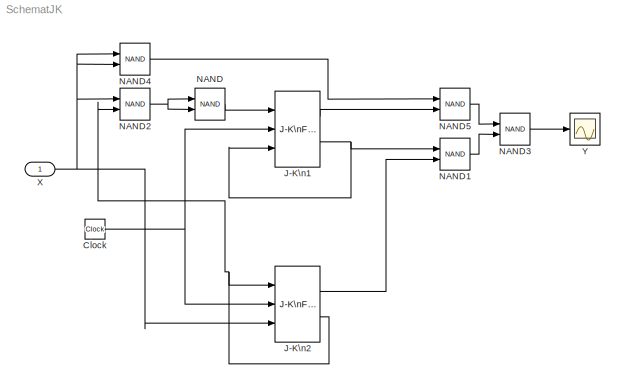
MODEL SchematJK
KIND model
BLOCK [Clock] Clock
  SID = 11
BLOCK [Reference] J-K\n1  REF=simulink_extras/Flip Flops/J-K\nFlip-Flop
  Ports = [3, 2]
  SID = 1
  SourceBlock = simulink_extras/Flip Flops/J-K\nFlip-Flop
  SourceProductBaseCode = SL
  SourceProductName = Simulink
  SourceType = JKFlipFlop
  initial_condition = 0
BLOCK [Reference] J-K\n2  REF=simulink_extras/Flip Flops/J-K\nFlip-Flop
  Ports = [3, 2]
  SID = 10
  SourceBlock = simulink_extras/Flip Flops/J-K\nFlip-Flop
  SourceProductBaseCode = SL
  SourceProductName = Simulink
  SourceType = JKFlipFlop
  initial_condition = 0
BLOCK [Logic] NAND
  AllPortsSameDT = off
  IconShape = distinctive
  Operator = NAND
  OutDataTypeStr = boolean
  Ports = [2, 1]
  SID = 2
BLOCK [Logic] NAND1
  AllPortsSameDT = off
  IconShape = distinctive
  Operator = NAND
  OutDataTypeStr = boolean
  Ports = [2, 1]
  SID = 3
BLOCK [Logic] NAND2
  AllPortsSameDT = off
  IconShape = distinctive
  Operator = NAND
  OutDataTypeStr = boolean
  Ports = [2, 1]
  SID = 4
BLOCK [Logic] NAND3
  AllPortsSameDT = off
  IconShape = distinctive
  Operator = NAND
  OutDataTypeStr = boolean
  Ports = [2, 1]
  SID = 5
BLOCK [Logic] NAND4
  AllPortsSameDT = off
  IconShape = distinctive
  Operator = NAND
  OutDataTypeStr = boolean
  Ports = [2, 1]
  SID = 6
BLOCK [Logic] NAND5
  AllPortsSameDT = off
  IconShape = distinctive
  Operator = NAND
  OutDataTypeStr = boolean
  Ports = [2, 1]
  SID = 7
BLOCK [Inport] X
  IconDisplay = Port number
  SID = 12
BLOCK [Scope] Y
  Floating = off
  NumInputPorts = 1
  Ports = [1]
  SID = 13
  ScopeSpecificationString = Simulink.scopes.TimeScopeBlockCfg('CurrentConfiguration', extmgr.ConfigurationSet(extmgr.Configuration('Core','General UI',true),extmgr.Configuration('Core','Source UI',true),extmgr.Configuration('Sources','WiredSimulink',true),extmgr.Configuration('Visuals','Time Domain',true),extmgr.Configuration('Tools','Plot Navigation',true),extmgr.Configuration('Tools','Measurements',true)),'Version','2018b'...<+1ch>
NET Clock:1 -> J-K\n1:2, J-K\n2:2
LINE J-K\n1:1 -> NAND5:2
NET J-K\n1:2 -> J-K\n1:3, NAND1:1
LINE J-K\n2:1 -> NAND1:2
NET J-K\n2:2 -> J-K\n2:1, NAND2:2
LINE NAND1:1 -> NAND3:2
NET NAND2:1 -> NAND:1, NAND:2
LINE NAND3:1 -> Y:1
LINE NAND4:1 -> NAND5:1
LINE NAND5:1 -> NAND3:1
LINE NAND:1 -> J-K\n1:1
NET X:1 -> J-K\n2:3, NAND2:1, NAND4:1, NAND4:2
note: NET lines group one-source signal fan-out (src -> all destinations, sorted); 1:1 wires keep LINE
